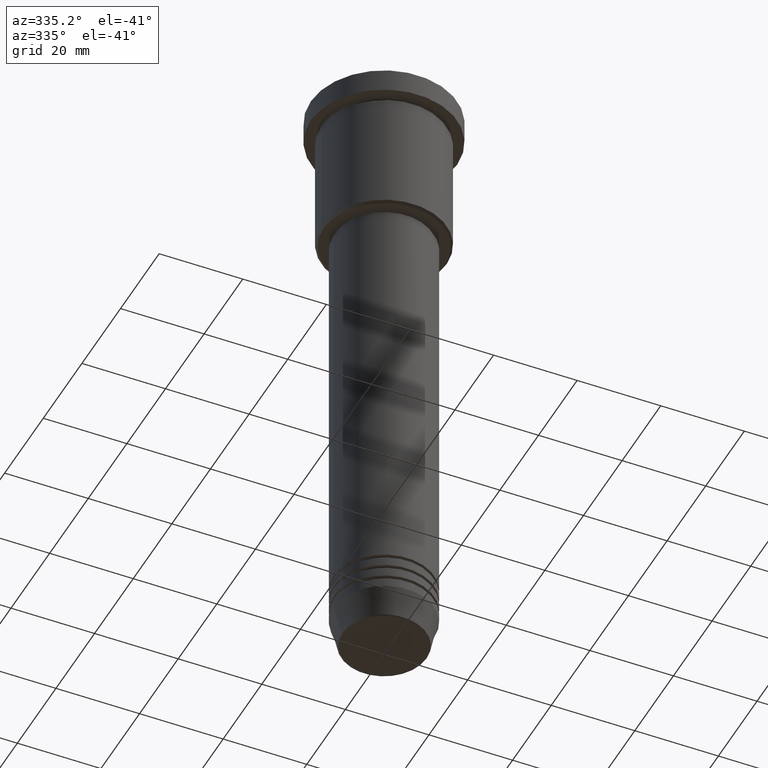
[diagram: clean part render]
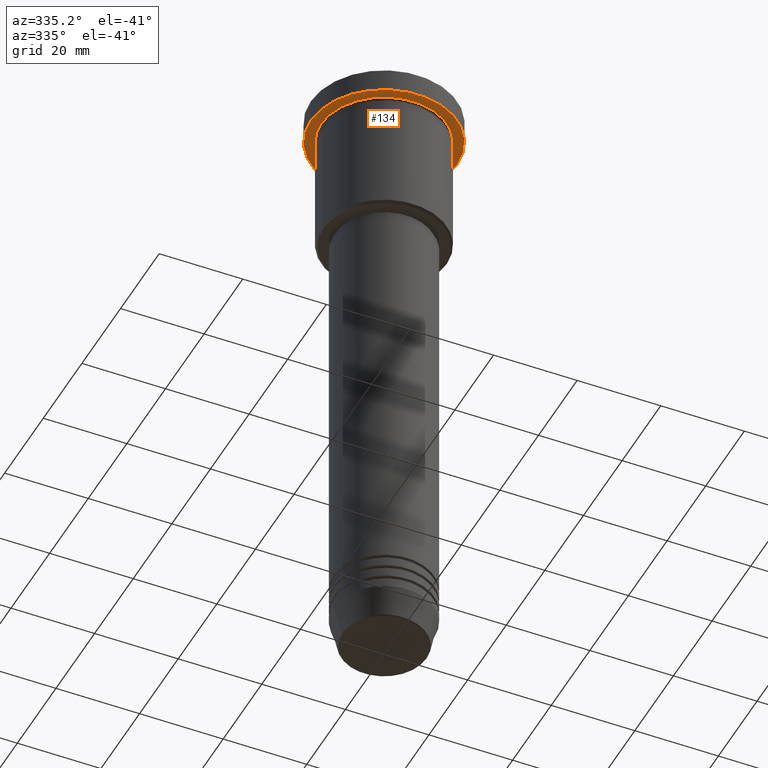
[diagram: same view with one face highlighted and labeled with its STEP entity id]
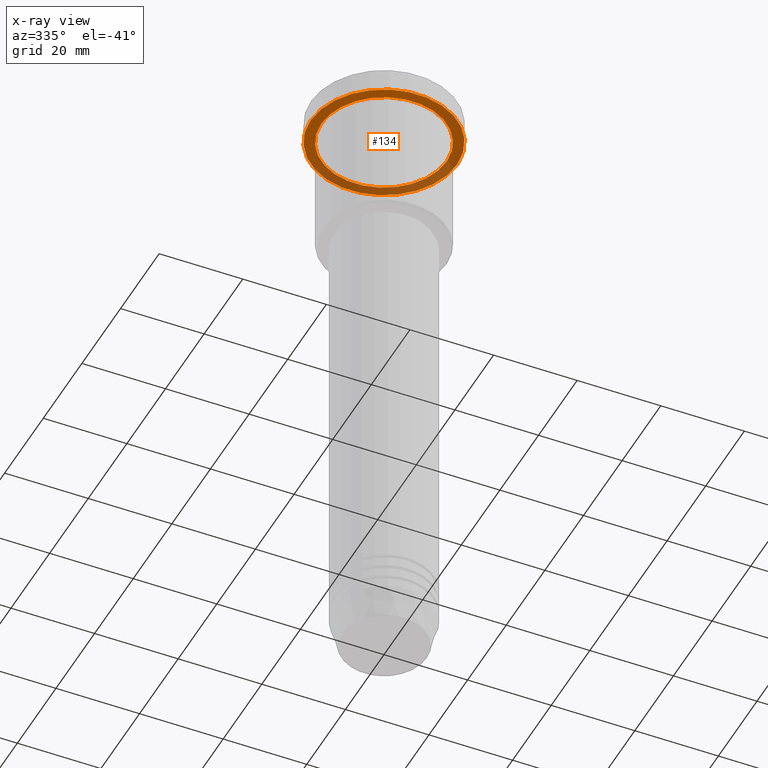
[diagram: x-ray of the same camera — body ghosted, the highlighted face saturated]
A machine part, auxiliary view. The second image highlights one B-rep face of the part: STEP entity #134.
The next image is the same camera in x-ray: the body ghosted, the highlighted face saturated — about 35% of this face is hidden behind the body in this view.
In plain terms, the highlighted planar face has unit normal (0, 0, -1).
Its self-contained STEP definition (entity closure, byte-faithful):
#28 = ORIENTED_EDGE ( 'NONE', *, *, #234, .F. ) ;
#33 = AXIS2_PLACEMENT_3D ( 'NONE', #705, #1100, #1078 ) ;
#57 = EDGE_LOOP ( 'NONE', ( #637, #758 ) ) ;
#131 = DIRECTION ( 'NONE',  ( -1.000000000000000000, 0.000000000000000000, -0.000000000000000000 ) ) ;
#134 = ADVANCED_FACE ( 'NONE', ( #853, #399 ), #956, .T. ) ;
#189 = VERTEX_POINT ( 'NONE', #878 ) ;
#192 = CIRCLE ( 'NONE', #326, 17.50000000000000000 ) ;
#225 = DIRECTION ( 'NONE',  ( -0.000000000000000000, -0.000000000000000000, 1.000000000000000000 ) ) ;
#234 = EDGE_CURVE ( 'NONE', #673, #936, #872, .T. ) ;
#245 = CARTESIAN_POINT ( 'NONE',  ( -17.50000000000000000, 2.143131898507868248E-15, -5.999999999999995559 ) ) ;
#326 = AXIS2_PLACEMENT_3D ( 'NONE', #682, #225, #404 ) ;
#335 = EDGE_CURVE ( 'NONE', #689, #189, #1069, .T. ) ;
#337 = ORIENTED_EDGE ( 'NONE', *, *, #1022, .F. ) ;
#341 = CARTESIAN_POINT ( 'NONE',  ( 0.000000000000000000, 0.000000000000000000, -5.999999999999995559 ) ) ;
#399 = FACE_OUTER_BOUND ( 'NONE', #649, .T. ) ;
#404 = DIRECTION ( 'NONE',  ( 1.000000000000000000, 0.000000000000000000, 0.000000000000000000 ) ) ;
#480 = CARTESIAN_POINT ( 'NONE',  ( 0.000000000000000000, 17.50000000000000000, -5.999999999999995559 ) ) ;
#573 = CARTESIAN_POINT ( 'NONE',  ( 17.50000000000000000, 0.000000000000000000, -5.999999999999995559 ) ) ;
#624 = DIRECTION ( 'NONE',  ( 1.000000000000000000, 0.000000000000000000, 0.000000000000000000 ) ) ;
#637 = ORIENTED_EDGE ( 'NONE', *, *, #335, .T. ) ;
#649 = EDGE_LOOP ( 'NONE', ( #337, #28 ) ) ;
#673 = VERTEX_POINT ( 'NONE', #245 ) ;
#682 = CARTESIAN_POINT ( 'NONE',  ( 0.000000000000000000, 0.000000000000000000, -5.999999999999995559 ) ) ;
#689 = VERTEX_POINT ( 'NONE', #695 ) ;
#695 = CARTESIAN_POINT ( 'NONE',  ( -15.00000000000000000, 0.000000000000000000, -5.999999999999994671 ) ) ;
#698 = AXIS2_PLACEMENT_3D ( 'NONE', #1093, #1002, #704 ) ;
#704 = DIRECTION ( 'NONE',  ( -1.000000000000000000, 0.000000000000000000, 0.000000000000000000 ) ) ;
#705 = CARTESIAN_POINT ( 'NONE',  ( 0.000000000000000000, 0.000000000000000000, -5.999999999999995559 ) ) ;
#719 = EDGE_CURVE ( 'NONE', #189, #689, #1158, .T. ) ;
#724 = DIRECTION ( 'NONE',  ( -0.000000000000000000, -0.000000000000000000, 1.000000000000000000 ) ) ;
#758 = ORIENTED_EDGE ( 'NONE', *, *, #719, .T. ) ;
#853 = FACE_BOUND ( 'NONE', #57, .T. ) ;
#872 = CIRCLE ( 'NONE', #947, 17.50000000000000000 ) ;
#878 = CARTESIAN_POINT ( 'NONE',  ( 15.00000000000000000, 1.836970198721029589E-15, -5.999999999999994671 ) ) ;
#936 = VERTEX_POINT ( 'NONE', #573 ) ;
#947 = AXIS2_PLACEMENT_3D ( 'NONE', #341, #724, #624 ) ;
#956 = PLANE ( 'NONE',  #1140 ) ;
#1002 = DIRECTION ( 'NONE',  ( -0.000000000000000000, -0.000000000000000000, 1.000000000000000000 ) ) ;
#1022 = EDGE_CURVE ( 'NONE', #936, #673, #192, .T. ) ;
#1050 = DIRECTION ( 'NONE',  ( 0.000000000000000000, 0.000000000000000000, -1.000000000000000000 ) ) ;
#1069 = CIRCLE ( 'NONE', #33, 15.00000000000000000 ) ;
#1078 = DIRECTION ( 'NONE',  ( -1.000000000000000000, 0.000000000000000000, 0.000000000000000000 ) ) ;
#1093 = CARTESIAN_POINT ( 'NONE',  ( 0.000000000000000000, 0.000000000000000000, -5.999999999999995559 ) ) ;
#1100 = DIRECTION ( 'NONE',  ( -0.000000000000000000, -0.000000000000000000, 1.000000000000000000 ) ) ;
#1140 = AXIS2_PLACEMENT_3D ( 'NONE', #480, #1050, #131 ) ;
#1158 = CIRCLE ( 'NONE', #698, 15.00000000000000000 ) ;